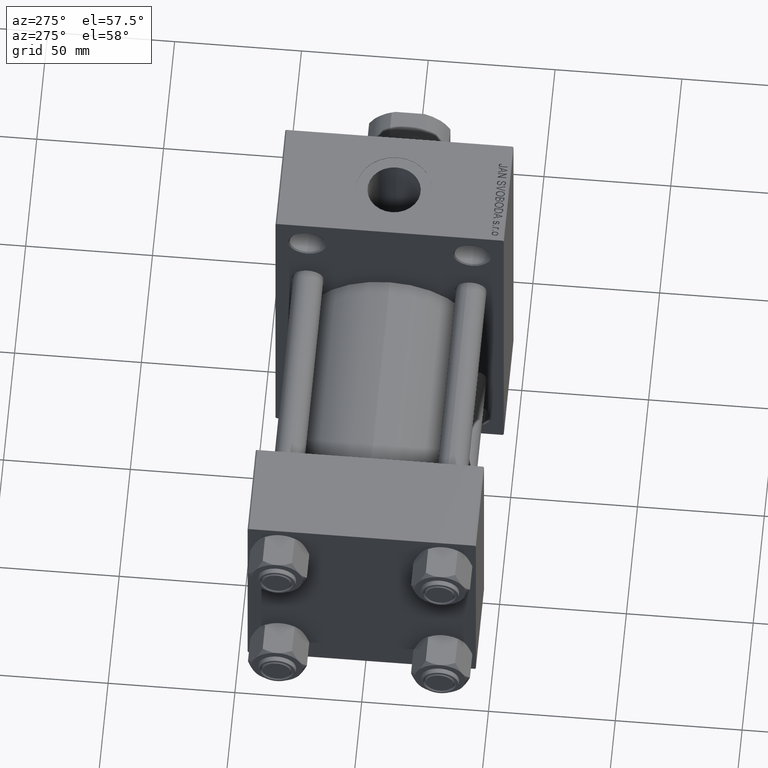
[diagram: clean part render]
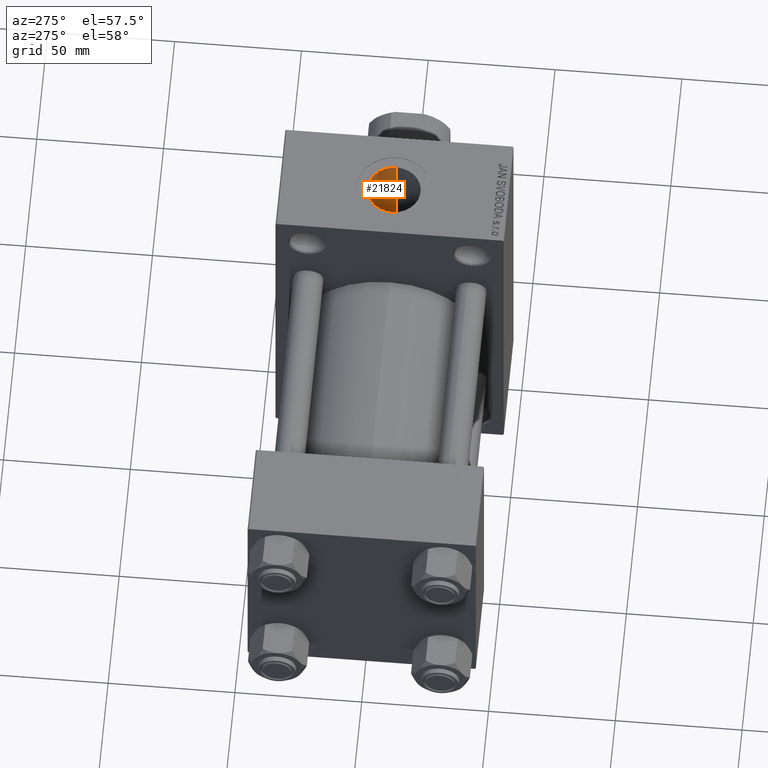
[diagram: same view with one face highlighted and labeled with its STEP entity id]
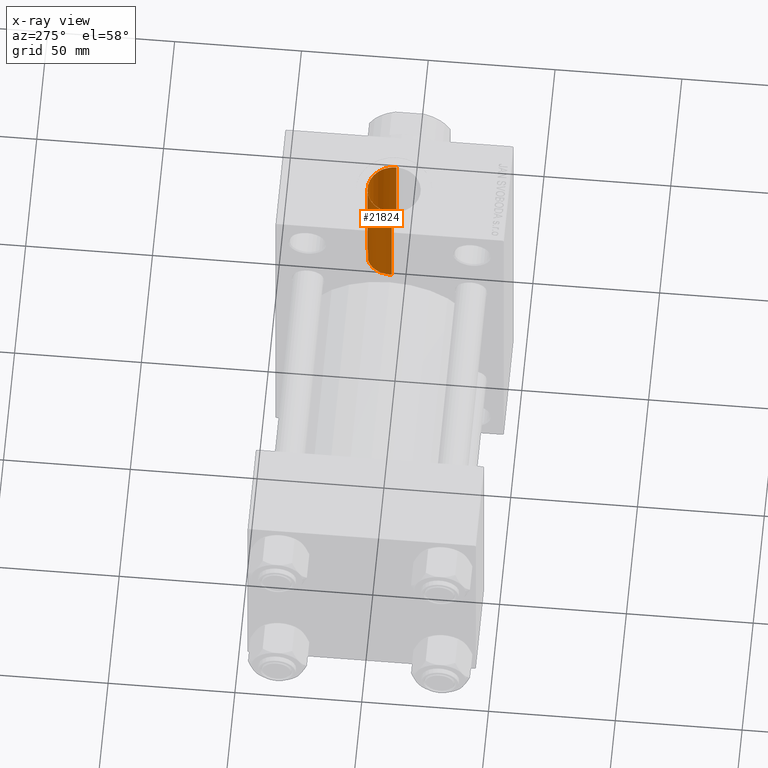
[diagram: x-ray of the same camera — body ghosted, the highlighted face saturated]
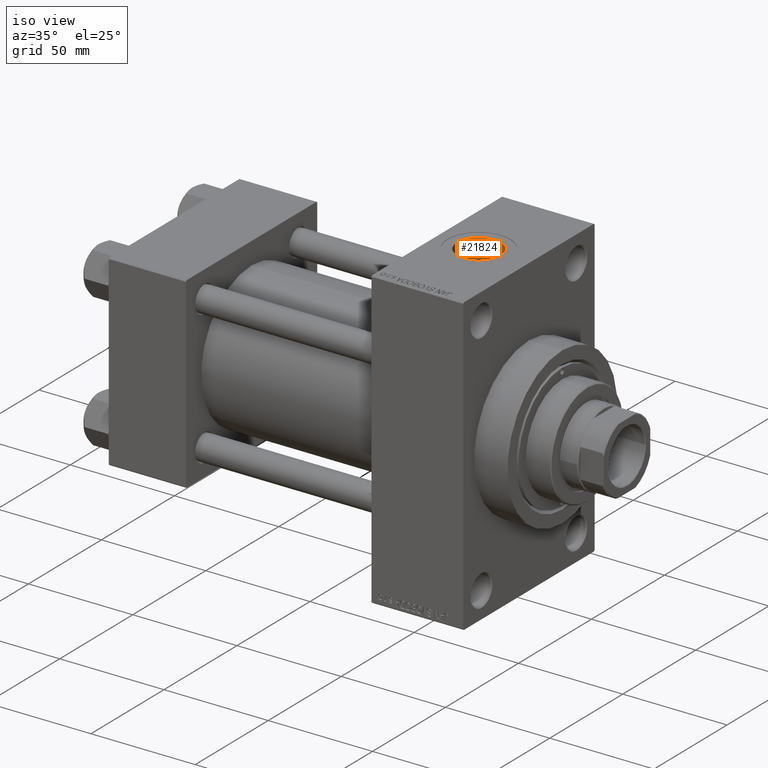
[diagram: same view with one face highlighted and labeled with its STEP entity id]
A machine part, auxiliary view. The second image highlights one B-rep face of the part: STEP entity #21824.
The next image is the same camera in x-ray: the body ghosted, the highlighted face saturated — about 3% of this face is hidden behind the body in this view.
A second angle (iso view) of the same face is appended — the face is thin or edge-on in the first view.
In plain terms, the highlighted cylindrical surface (edge-blend (fillet) strip) has radius 10.48 mm, axis along (0, 0, -1).
Its self-contained STEP definition (entity closure, byte-faithful):
#221 = DIRECTION ( 'NONE',  ( 0.000000000000000000, 0.000000000000000000, -1.000000000000000000 ) ) ;
#785 = CARTESIAN_POINT ( 'NONE',  ( 135.5199999999999818, 3.061579607129328475E-15, 25.00000000000000000 ) ) ;
#1075 = AXIS2_PLACEMENT_3D ( 'NONE', #27984, #28220, #31354 ) ;
#1086 = EDGE_LOOP ( 'NONE', ( #43457, #19146, #20933, #13571, #16408, #7168 ) ) ;
#1662 = DIRECTION ( 'NONE',  ( 0.000000000000000000, 0.000000000000000000, -1.000000000000000000 ) ) ;
#2840 = CARTESIAN_POINT ( 'NONE',  ( 142.7400000000000091, 9.960060240781666963, 28.29836037653065617 ) ) ;
#3300 = CARTESIAN_POINT ( 'NONE',  ( 154.9382592368621374, 5.487081182378855004, 29.49600040171357307 ) ) ;
#3343 = CARTESIAN_POINT ( 'NONE',  ( 137.6967244621314990, 6.399965487557559563, 24.16798554837829016 ) ) ;
#3532 = CARTESIAN_POINT ( 'NONE',  ( 156.4799999999999613, 0.8289108953755147668, 30.00000000000000000 ) ) ;
#3775 = CARTESIAN_POINT ( 'NONE',  ( 155.1456671303457142, 5.133639323080402050, 29.55979794353439161 ) ) ;
#3819 = CARTESIAN_POINT ( 'NONE',  ( 135.5199999999999818, -1.094803260394251466E-14, 93.79999999999996874 ) ) ;
#4552 = CARTESIAN_POINT ( 'NONE',  ( 156.4799999999999613, -9.664602758436089169E-15, 70.79999999999996874 ) ) ;
#5696 = CARTESIAN_POINT ( 'NONE',  ( 156.4799999999999613, 3.673940397618681979E-15, 30.00000000000000000 ) ) ;
#6251 = CARTESIAN_POINT ( 'NONE',  ( 137.8651253838970376, 6.612730445768653098, 24.11053477674085954 ) ) ;
#6467 = CARTESIAN_POINT ( 'NONE',  ( 135.5199999999999818, -1.094803260394251466E-14, 70.79999999999996874 ) ) ;
#6669 = CARTESIAN_POINT ( 'NONE',  ( 146.0002282757462808, 10.48827684731153909, 28.10687390860659818 ) ) ;
#6810 = VERTEX_POINT ( 'NONE', #6467 ) ;
#6906 = CARTESIAN_POINT ( 'NONE',  ( 154.2306735501210539, 6.500194899328769260, 29.28905352826703989 ) ) ;
#7138 = CARTESIAN_POINT ( 'NONE',  ( 156.0901672462784404, 2.862209008249555708, 29.86591119163860242 ) ) ;
#7168 = ORIENTED_EDGE ( 'NONE', *, *, #12488, .T. ) ;
#7180 = CARTESIAN_POINT ( 'NONE',  ( 135.8714792709155859, 2.746840284963965040, 24.85421337676989140 ) ) ;
#7495 = CARTESIAN_POINT ( 'NONE',  ( 142.7400000000000091, 9.960060240781666963, 28.29836037653065617 ) ) ;
#9094 = CARTESIAN_POINT ( 'NONE',  ( 142.7400000000000091, 9.960060240781666963, 93.79999999999996874 ) ) ;
#10074 = CARTESIAN_POINT ( 'NONE',  ( 136.1284384137638597, 3.529601645624528494, 24.75098332906154042 ) ) ;
#10296 = CARTESIAN_POINT ( 'NONE',  ( 135.6081712893590350, 1.384942614456414312, 24.96313457725881335 ) ) ;
#10488 = CARTESIAN_POINT ( 'NONE',  ( 146.8327597629122465, 10.45516439159306366, 28.11920784241488036 ) ) ;
#10765 = CARTESIAN_POINT ( 'NONE',  ( 136.5534232013268365, 4.546234407114489784, 24.58442359052068227 ) ) ;
#10923 = VERTEX_POINT ( 'NONE', #5696 ) ;
#11008 = CIRCLE ( 'NONE', #1075, 10.47999999999998977 ) ;
#11594 = VERTEX_POINT ( 'NONE', #4552 ) ;
#12488 = EDGE_CURVE ( 'NONE', #35746, #10923, #46352, .T. ) ;
#12554 = CARTESIAN_POINT ( 'NONE',  ( 142.7399999999999807, 9.960060240781658081, 22.93026820601975402 ) ) ;
#13205 = VERTEX_POINT ( 'NONE', #785 ) ;
#13571 = ORIENTED_EDGE ( 'NONE', *, *, #42096, .T. ) ;
#13908 = AXIS2_PLACEMENT_3D ( 'NONE', #29846, #29361, #18806 ) ;
#14194 = VECTOR ( 'NONE', #33010, 1000.000000000000000 ) ;
#14606 = CARTESIAN_POINT ( 'NONE',  ( 136.9306559456026662, 5.280155339913235935, 24.44112276137722617 ) ) ;
#14836 = LINE ( 'NONE', #3819, #45764 ) ;
#16408 = ORIENTED_EDGE ( 'NONE', *, *, #24755, .F. ) ;
#17275 = CARTESIAN_POINT ( 'NONE',  ( 135.5748675089373307, 1.106412475567422726, 24.97704123077413385 ) ) ;
#17510 = CARTESIAN_POINT ( 'NONE',  ( 142.2204695759653816, 9.790014162604524728, 23.00412993180229648 ) ) ;
#17918 = CARTESIAN_POINT ( 'NONE',  ( 155.6823871826148036, 4.031213830330544923, 29.73045584359391569 ) ) ;
#17963 = CARTESIAN_POINT ( 'NONE',  ( 138.4055094269452297, 7.226927296489261465, 23.93349527817646916 ) ) ;
#18159 = CARTESIAN_POINT ( 'NONE',  ( 156.4799999999999613, 3.673940397618681979E-15, 30.00000000000000000 ) ) ;
#18806 = DIRECTION ( 'NONE',  ( -1.000000000000000000, 0.000000000000000000, 0.000000000000000000 ) ) ;
#19146 = ORIENTED_EDGE ( 'NONE', *, *, #29407, .F. ) ;
#20860 = CARTESIAN_POINT ( 'NONE',  ( 135.5199999999999818, 3.061579607129328475E-15, 25.00000000000000000 ) ) ;
#20933 = ORIENTED_EDGE ( 'NONE', *, *, #42200, .T. ) ;
#21087 = CARTESIAN_POINT ( 'NONE',  ( 138.9846989220167188, 7.804704455460312218, 23.75393200882465905 ) ) ;
#21516 = CARTESIAN_POINT ( 'NONE',  ( 147.2444743077374767, 10.41402026144617388, 28.13455134504984301 ) ) ;
#21739 = CARTESIAN_POINT ( 'NONE',  ( 155.9683417730960286, 3.260593319422027569, 29.82480881445975385 ) ) ;
#21824 = ADVANCED_FACE ( 'NONE', ( #43744 ), #33675, .F. ) ;
#24468 = CARTESIAN_POINT ( 'NONE',  ( 142.7399999999999807, 9.960060240781658081, 22.93026820601975402 ) ) ;
#24755 = EDGE_CURVE ( 'NONE', #35746, #40397, #41926, .T. ) ;
#25115 = CARTESIAN_POINT ( 'NONE',  ( 148.4620306645708183, 10.19511646566074781, 28.21478357702915929 ) ) ;
#27984 = CARTESIAN_POINT ( 'NONE',  ( 145.9999999999999716, -1.094803260394251466E-14, 70.79999999999996874 ) ) ;
#28220 = DIRECTION ( 'NONE',  ( -0.000000000000000000, -0.000000000000000000, -1.000000000000000000 ) ) ;
#28301 = CARTESIAN_POINT ( 'NONE',  ( 135.7407124806769616, 2.210995156578869469, 24.90815361058044175 ) ) ;
#28943 = CARTESIAN_POINT ( 'NONE',  ( 156.4799999999999613, -9.664602758436089169E-15, 93.79999999999996874 ) ) ;
#28953 = CARTESIAN_POINT ( 'NONE',  ( 149.2590511626587215, 9.968980903825977791, 28.29547369785730027 ) ) ;
#28997 = CARTESIAN_POINT ( 'NONE',  ( 141.7145022253385775, 9.579591377203483304, 23.09339075464096425 ) ) ;
#29188 = CARTESIAN_POINT ( 'NONE',  ( 152.8380018292596958, 7.984464829307542644, 28.92238598225678459 ) ) ;
#29231 = CARTESIAN_POINT ( 'NONE',  ( 137.2168952918915750, 5.742964677340205881, 24.33562597405338224 ) ) ;
#29361 = DIRECTION ( 'NONE',  ( 0.000000000000000000, 0.000000000000000000, -1.000000000000000000 ) ) ;
#29407 = EDGE_CURVE ( 'NONE', #6810, #11594, #11008, .T. ) ;
#29846 = CARTESIAN_POINT ( 'NONE',  ( 145.9999999999999716, -1.094803260394251466E-14, 93.79999999999996874 ) ) ;
#31354 = DIRECTION ( 'NONE',  ( 1.000000000000000000, 0.000000000000000000, 0.000000000000000000 ) ) ;
#31896 = CARTESIAN_POINT ( 'NONE',  ( 135.5200000000000102, 0.2761730040892667604, 25.00000000000000355 ) ) ;
#32090 = CARTESIAN_POINT ( 'NONE',  ( 154.4793501314061075, 6.172613663302636944, 29.36019312204047793 ) ) ;
#32359 = CARTESIAN_POINT ( 'NONE',  ( 135.5308991753442740, 0.5526879277622545050, 24.99542504668380971 ) ) ;
#32584 = CARTESIAN_POINT ( 'NONE',  ( 140.2707649538851626, 8.791964167062964464, 23.40546361773868611 ) ) ;
#32780 = CARTESIAN_POINT ( 'NONE',  ( 151.5055286267077292, 8.955395143035854488, 28.63663715154386580 ) ) ;
#33010 = DIRECTION ( 'NONE',  ( 0.000000000000000000, 0.000000000000000000, -1.000000000000000000 ) ) ;
#33252 = EDGE_CURVE ( 'NONE', #11594, #10923, #47161, .T. ) ;
#33675 = CYLINDRICAL_SURFACE ( 'NONE', #13908, 10.47999999999998977 ) ;
#35707 = CARTESIAN_POINT ( 'NONE',  ( 139.3963603562479534, 8.155655190358217510, 23.63471280748280989 ) ) ;
#35746 = VERTEX_POINT ( 'NONE', #7495 ) ;
#36173 = CARTESIAN_POINT ( 'NONE',  ( 136.4364837241043631, 4.294796546401070891, 24.62967549968344727 ) ) ;
#36360 = CARTESIAN_POINT ( 'NONE',  ( 156.3830360161805970, 1.648097371455660376, 29.96570276014226764 ) ) ;
#38462 = VECTOR ( 'NONE', #1662, 1000.000000000000000 ) ;
#39269 = CARTESIAN_POINT ( 'NONE',  ( 143.5317014108506442, 10.21918985817144687, 28.20715556589740913 ) ) ;
#39503 = CARTESIAN_POINT ( 'NONE',  ( 145.5797722390586273, 10.47976684723565377, 28.11006442857998877 ) ) ;
#39738 = CARTESIAN_POINT ( 'NONE',  ( 148.0591099703892723, 10.28399729863217082, 28.18233838691856619 ) ) ;
#39971 = CARTESIAN_POINT ( 'NONE',  ( 155.5177326829065407, 4.405705906582501719, 29.67702246902074137 ) ) ;
#40397 = VERTEX_POINT ( 'NONE', #12554 ) ;
#41926 = LINE ( 'NONE', #9094, #38462 ) ;
#42096 = EDGE_CURVE ( 'NONE', #13205, #40397, #46555, .T. ) ;
#42200 = EDGE_CURVE ( 'NONE', #6810, #13205, #14836, .T. ) ;
#42873 = CARTESIAN_POINT ( 'NONE',  ( 153.4361280113390364, 7.429595108124735781, 29.07242469717889222 ) ) ;
#42919 = CARTESIAN_POINT ( 'NONE',  ( 138.2191150461718223, 7.025825097695098442, 23.99341311413246203 ) ) ;
#43104 = CARTESIAN_POINT ( 'NONE',  ( 149.6536175153770216, 9.831116643404991251, 28.34390843602813703 ) ) ;
#43457 = ORIENTED_EDGE ( 'NONE', *, *, #33252, .F. ) ;
#43571 = CARTESIAN_POINT ( 'NONE',  ( 150.7931686517055425, 9.355930520045811605, 28.50576369173084146 ) ) ;
#43744 = FACE_OUTER_BOUND ( 'NONE', #1086, .T. ) ;
#43847 = CARTESIAN_POINT ( 'NONE',  ( 136.2242790990456456, 3.787004330726779777, 24.71284667523638845 ) ) ;
#45764 = VECTOR ( 'NONE', #221, 1000.000000000000000 ) ;
#46352 = B_SPLINE_CURVE_WITH_KNOTS ( 'NONE', 3,
 ( #2840, #39269, #46940, #39503, #6669, #10488, #21516, #39738, #25115, #28953, #43104, #43571, #32780, #29188, #42873, #6906, #32090, #3300, #3775, #39971, #17918, #21739, #7138, #36360, #3532, #18159 ),
 .UNSPECIFIED., .F., .F.,
 ( 4, 2, 2, 2, 2, 2, 2, 2, 2, 2, 2, 2, 4 ),
 ( 0.000000000000000000, 0.002478973229448083997, 0.003718459844172084579, 0.004957946458896085595, 0.006197433073620086177, 0.007436919688344086760, 0.009915892917792091393, 0.01239486614724009429, 0.01363435276196410181, 0.01487383937668810240, 0.01611332599141210298, 0.01735281260613610529, 0.01983178583558413421 ),
 .UNSPECIFIED. ) ;
#46555 = B_SPLINE_CURVE_WITH_KNOTS ( 'NONE', 3,
 ( #20860, #31896, #32359, #17275, #10296, #28301, #7180, #10074, #43847, #36173, #10765, #14606, #29231, #3343, #6251, #42919, #17963, #21087, #35707, #32584, #47212, #28997, #17510, #24468 ),
 .UNSPECIFIED., .F., .F.,
 ( 4, 2, 2, 2, 2, 2, 2, 2, 2, 2, 2, 4 ),
 ( 0.03315293716445244510, 0.03398143856659525952, 0.03480993996873806701, 0.03646694277302369586, 0.03729544417516650334, 0.03812394557730931777, 0.03978094838159493968, 0.04060944978373774716, 0.04143795118588056159, 0.04309495399016617656, 0.04475195679445179847, 0.04640895959873742038 ),
 .UNSPECIFIED. ) ;
#46940 = CARTESIAN_POINT ( 'NONE',  ( 144.3405906774045206, 10.38092379675459576, 28.14678245432906678 ) ) ;
#47161 = LINE ( 'NONE', #28943, #14194 ) ;
#47212 = CARTESIAN_POINT ( 'NONE',  ( 140.7334908428740334, 9.077331294423915509, 23.29539276492243616 ) ) ;